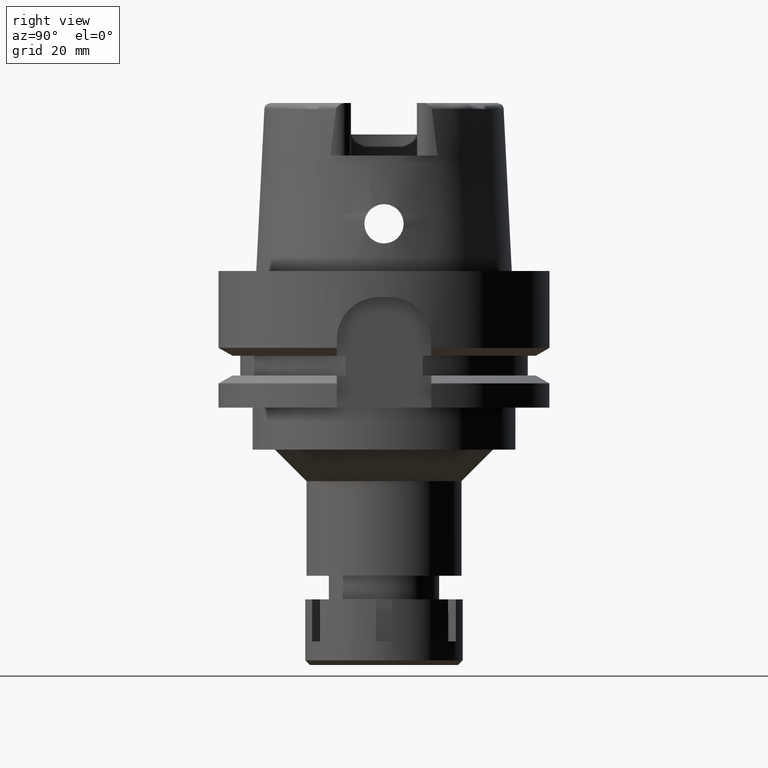
[diagram: clean part render]
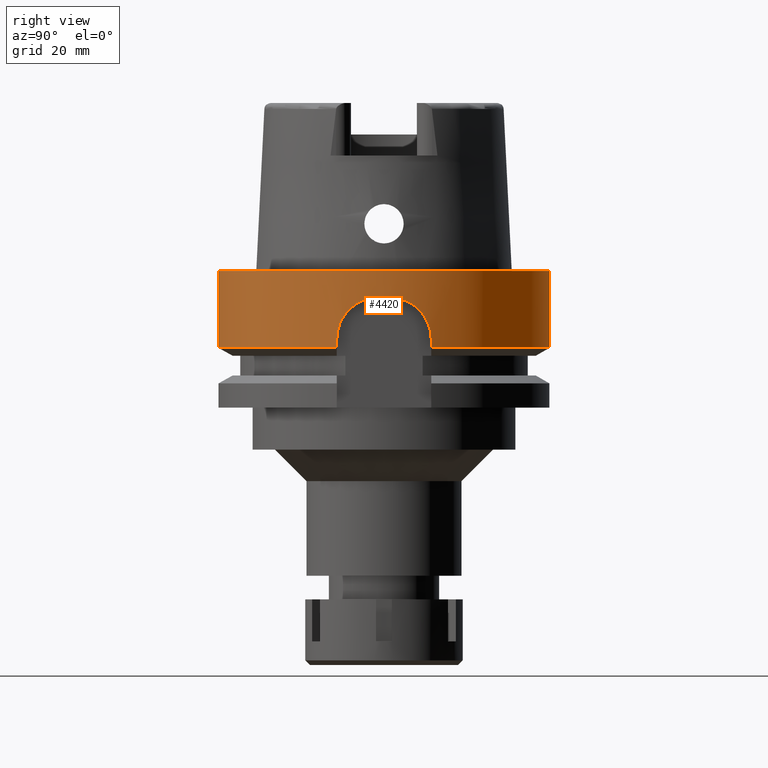
[diagram: same view with one face highlighted and labeled with its STEP entity id]
A machine part, right view. The second image highlights one B-rep face of the part: STEP entity #4420.
In plain terms, the highlighted cylindrical surface (partial cylindrical patch) has radius 31.5 mm, axis along (0, 0, -1).
Its self-contained STEP definition (entity closure, byte-faithful):
#4 = CARTESIAN_POINT ( 'NONE',  ( 30.78148365111714213, 6.689565182069702409, -7.376043464849003861 ) ) ;
#39 = CARTESIAN_POINT ( 'NONE',  ( 0.0000000000000000000, 1.677766114831999956E-14, 0.0000000000000000000 ) ) ;
#107 = CARTESIAN_POINT ( 'NONE',  ( 31.02797319483606486, -5.432761375399912218, -6.340373303321751308 ) ) ;
#139 = CARTESIAN_POINT ( 'NONE',  ( 0.0000000000000000000, 31.50000000000000000, -14.62250092523999889 ) ) ;
#166 = CARTESIAN_POINT ( 'NONE',  ( 30.97797763804207705, -5.712930770888673848, -6.530284249947230002 ) ) ;
#201 = CARTESIAN_POINT ( 'NONE',  ( 31.35607122379614609, -3.013391450067828270, -5.252881700905231099 ) ) ;
#241 = CIRCLE ( 'NONE', #2680, 31.49999999999999289 ) ;
#248 = VERTEX_POINT ( 'NONE', #5024 ) ;
#267 = CARTESIAN_POINT ( 'NONE',  ( 30.56029981751154168, -7.636631017110197206, -8.532876181258970405 ) ) ;
#360 = VECTOR ( 'NONE', #1124, 1000.000000000000000 ) ;
#369 = CARTESIAN_POINT ( 'NONE',  ( 30.69009880873393570, 7.098462872688864778, -7.820209739064075016 ) ) ;
#381 = CARTESIAN_POINT ( 'NONE',  ( 30.18691774079000112, 8.999999850595001405, -14.62250213027999912 ) ) ;
#397 = CARTESIAN_POINT ( 'NONE',  ( 30.54275554774404711, 7.706532036947776554, -8.638465214712349294 ) ) ;
#421 = CARTESIAN_POINT ( 'NONE',  ( 30.18691769625000632, 9.000000000000005329, -12.51035565466805899 ) ) ;
#456 = CARTESIAN_POINT ( 'NONE',  ( 31.01871288069463972, 5.485382523906350727, -6.375698367125474775 ) ) ;
#457 = CARTESIAN_POINT ( 'NONE',  ( 30.36389478902243155, -8.383544405778820874, -9.920470985410979381 ) ) ;
#476 = EDGE_CURVE ( 'NONE', #2558, #4615, #4098, .T. ) ;
#493 = CARTESIAN_POINT ( 'NONE',  ( 30.45943063634544146, 8.030118902081049725, -9.179699982118700419 ) ) ;
#495 = CARTESIAN_POINT ( 'NONE',  ( 30.37197365465753407, -8.354244172098301391, -9.850920936031977604 ) ) ;
#518 = CARTESIAN_POINT ( 'NONE',  ( 0.0000000000000000000, -31.50000000000000000, -14.62250092523999889 ) ) ;
#558 = CARTESIAN_POINT ( 'NONE',  ( 31.23410026198730804, 4.084248348500525871, -5.618435907310666444 ) ) ;
#593 = EDGE_CURVE ( 'NONE', #1068, #5653, #4219, .T. ) ;
#601 = CARTESIAN_POINT ( 'NONE',  ( 31.10876522246203990, -4.950170732599644019, -6.041869938743665180 ) ) ;
#624 = DIRECTION ( 'NONE',  ( 0.0000000000000000000, 0.0000000000000000000, -1.000000000000000000 ) ) ;
#629 = CARTESIAN_POINT ( 'NONE',  ( 31.24422722520275642, -4.006013624006941498, -5.586231993767872162 ) ) ;
#656 = CARTESIAN_POINT ( 'NONE',  ( 30.48049622959782567, -7.950573963582290737, -9.030179548391684463 ) ) ;
#689 = CARTESIAN_POINT ( 'NONE',  ( 30.73952989999871832, -6.883893007552462251, -7.569693794617783134 ) ) ;
#693 = EDGE_CURVE ( 'NONE', #1875, #1114, #6163, .T. ) ;
#719 = CARTESIAN_POINT ( 'NONE',  ( 30.84611475582509499, -6.384575698048524650, -7.082712731772429215 ) ) ;
#848 = CARTESIAN_POINT ( 'NONE',  ( 31.15711892493880342, 4.635972611428175405, -5.872780186188692575 ) ) ;
#884 = CARTESIAN_POINT ( 'NONE',  ( 30.54706518659995496, 7.689411622314710648, -8.612299891041281796 ) ) ;
#912 = CARTESIAN_POINT ( 'NONE',  ( 30.55015886526293656, 7.677101824582705625, -8.593603367411043692 ) ) ;
#934 = CARTESIAN_POINT ( 'NONE',  ( 0.0000000000000000000, 31.50000000000000000, 0.0000000000000000000 ) ) ;
#937 = CARTESIAN_POINT ( 'NONE',  ( 30.41091273291793229, 8.212615169025429651, -9.529086800332125406 ) ) ;
#940 = CARTESIAN_POINT ( 'NONE',  ( 0.0000000000000000000, 1.677766114831999956E-14, 37.00000000000000000 ) ) ;
#967 = CARTESIAN_POINT ( 'NONE',  ( 30.95356906829436383, 5.840595235416141229, -6.629295251251218879 ) ) ;
#1001 = DIRECTION ( 'NONE',  ( 0.0000000000000000000, 1.000000000000000000, 0.0000000000000000000 ) ) ;
#1068 = VERTEX_POINT ( 'NONE', #3517 ) ;
#1099 = CARTESIAN_POINT ( 'NONE',  ( 31.21214479923898466, -4.254475963520110149, -5.688146057964782010 ) ) ;
#1114 = VERTEX_POINT ( 'NONE', #3157 ) ;
#1124 = DIRECTION ( 'NONE',  ( 0.0000000000000000000, 2.721175632404000057E-14, -1.000000000000000000 ) ) ;
#1130 = ORIENTED_EDGE ( 'NONE', *, *, #5355, .F. ) ;
#1157 = CARTESIAN_POINT ( 'NONE',  ( 30.56951331995519539, -7.599724330830931684, -8.478411143897993441 ) ) ;
#1171 = EDGE_CURVE ( 'NONE', #6007, #1068, #4022, .T. ) ;
#1194 = CARTESIAN_POINT ( 'NONE',  ( 30.82571750781042397, -6.482449379905065534, -7.173788983184327783 ) ) ;
#1346 = CARTESIAN_POINT ( 'NONE',  ( 30.47652879783047908, 7.965014098454545888, -9.062047291202869559 ) ) ;
#1386 = CARTESIAN_POINT ( 'NONE',  ( 30.77165329688422801, 6.734679991239166164, -7.421994007308180485 ) ) ;
#1439 = CARTESIAN_POINT ( 'NONE',  ( 30.18691748915999895, -9.000000694596000272, -14.62249532278000075 ) ) ;
#1442 = CARTESIAN_POINT ( 'NONE',  ( 31.02017662484921345, 5.477102771240001999, -6.370101678855877303 ) ) ;
#1557 = AXIS2_PLACEMENT_3D ( 'NONE', #6012, #3624, #5549 ) ;
#1578 = CARTESIAN_POINT ( 'NONE',  ( 30.85909889956229435, -6.321181197444475153, -7.025751904065468345 ) ) ;
#1596 = ORIENTED_EDGE ( 'NONE', *, *, #1171, .F. ) ;
#1603 = CARTESIAN_POINT ( 'NONE',  ( 31.30247226131211491, 3.560025222427956493, -5.400071227477400093 ) ) ;
#1635 = CARTESIAN_POINT ( 'NONE',  ( 30.79724516347448926, -6.616615303664377556, -7.303178388600450432 ) ) ;
#1666 = CARTESIAN_POINT ( 'NONE',  ( 30.55815846529444002, -7.645193838811739973, -8.545630431340553557 ) ) ;
#1668 = VERTEX_POINT ( 'NONE', #139 ) ;
#1684 = CIRCLE ( 'NONE', #5227, 31.50000000000000000 ) ;
#1702 = CARTESIAN_POINT ( 'NONE',  ( 30.91849342379541810, -6.023486825926025467, -6.772495307575818302 ) ) ;
#1703 = CARTESIAN_POINT ( 'NONE',  ( 30.41590892496466125, -8.193239963576367302, -9.496691261237351966 ) ) ;
#1787 = CARTESIAN_POINT ( 'NONE',  ( 31.48412298285999711, -1.000000000000000000, -5.000000000000000000 ) ) ;
#1825 = CARTESIAN_POINT ( 'NONE',  ( 30.34509688291278806, 8.451419039640329700, -10.08823754938543260 ) ) ;
#1856 = CARTESIAN_POINT ( 'NONE',  ( 30.61169255399651945, 7.430572475122223963, -8.233870605579486579 ) ) ;
#1875 = VERTEX_POINT ( 'NONE', #4453 ) ;
#1890 = CARTESIAN_POINT ( 'NONE',  ( 30.35029740851320312, 8.432673448983045716, -10.04100477059268748 ) ) ;
#1920 = CARTESIAN_POINT ( 'NONE',  ( 30.97075232428232638, 5.748917598735032719, -6.561274915434163191 ) ) ;
#1948 = CARTESIAN_POINT ( 'NONE',  ( 31.02041403896003757, 5.475758734176313425, -6.369193933268698871 ) ) ;
#2011 = VECTOR ( 'NONE', #3181, 1000.000000000000000 ) ;
#2025 = EDGE_CURVE ( 'NONE', #1114, #248, #5651, .T. ) ;
#2048 = CARTESIAN_POINT ( 'NONE',  ( 30.79145347118613074, -6.643527767629334058, -7.329841252905257676 ) ) ;
#2072 = CARTESIAN_POINT ( 'NONE',  ( 31.22893191012109781, 4.123620075163048959, -5.634989586511971460 ) ) ;
#2173 = CARTESIAN_POINT ( 'NONE',  ( 31.26824356153269591, -3.814558525683269252, -5.510911337014207767 ) ) ;
#2204 = CARTESIAN_POINT ( 'NONE',  ( 30.55901330870536370, -7.641775936166810723, -8.540535702201847101 ) ) ;
#2299 = CARTESIAN_POINT ( 'NONE',  ( 30.53421219216972204, 7.740374578692214236, -8.690758859998446439 ) ) ;
#2356 = CARTESIAN_POINT ( 'NONE',  ( 30.77934224668183916, 6.699411514687004576, -7.386023333928227963 ) ) ;
#2393 = CARTESIAN_POINT ( 'NONE',  ( 30.24372130387500235, 8.809644321440931236, -11.24610680630427950 ) ) ;
#2406 = ORIENTED_EDGE ( 'NONE', *, *, #2025, .F. ) ;
#2415 = VECTOR ( 'NONE', #5729, 1000.000000000000114 ) ;
#2423 = CARTESIAN_POINT ( 'NONE',  ( 30.26147243125781472, 8.748295279893280707, -10.99148938357330074 ) ) ;
#2424 = CARTESIAN_POINT ( 'NONE',  ( 30.24485344821111354, -8.814384607751890144, -10.96434848890502067 ) ) ;
#2485 = CARTESIAN_POINT ( 'NONE',  ( 31.20965324672399177, 4.267577691866892842, -5.697308202746828698 ) ) ;
#2529 = CARTESIAN_POINT ( 'NONE',  ( 30.81528862570089800, -6.532080774231028286, -7.220736073166444058 ) ) ;
#2558 = VERTEX_POINT ( 'NONE', #3100 ) ;
#2588 = CARTESIAN_POINT ( 'NONE',  ( 31.46862929035463452, -1.487805320265247477, -4.999999999999999112 ) ) ;
#2628 = CARTESIAN_POINT ( 'NONE',  ( 31.29498280911034058, -3.590644704226123807, -5.428944358107306911 ) ) ;
#2680 = AXIS2_PLACEMENT_3D ( 'NONE', #2778, #4799, #3285 ) ;
#2772 = CARTESIAN_POINT ( 'NONE',  ( 30.29342446054688409, 8.635894868964701487, -10.61030164868087766 ) ) ;
#2778 = CARTESIAN_POINT ( 'NONE',  ( 0.0000000000000000000, 1.677766114831999956E-14, -5.000000000000000000 ) ) ;
#2783 = AXIS2_PLACEMENT_3D ( 'NONE', #940, #4358, #2877 ) ;
#2809 = CARTESIAN_POINT ( 'NONE',  ( 30.35576970332012081, 8.412926845556853550, -9.991887989071663867 ) ) ;
#2871 = CARTESIAN_POINT ( 'NONE',  ( 31.01660052379812882, 5.497299383744097767, -6.383776048889555632 ) ) ;
#2877 = DIRECTION ( 'NONE',  ( 0.0000000000000000000, -1.000000000000000000, 0.0000000000000000000 ) ) ;
#2906 = CARTESIAN_POINT ( 'NONE',  ( 30.50356433057181960, 7.860471261621429839, -8.884339992107612716 ) ) ;
#3008 = ORIENTED_EDGE ( 'NONE', *, *, #3254, .T. ) ;
#3034 = CARTESIAN_POINT ( 'NONE',  ( 31.00780943517899146, -5.547927636275338692, -6.417052218067710534 ) ) ;
#3059 = CARTESIAN_POINT ( 'NONE',  ( 31.44054950469833543, -1.991650298182549239, -5.044728215212137101 ) ) ;
#3100 = CARTESIAN_POINT ( 'NONE',  ( 0.0000000000000000000, -31.50000000000000000, 0.0000000000000000000 ) ) ;
#3157 = CARTESIAN_POINT ( 'NONE',  ( 30.18691769625000276, 9.000000000000000000, -13.00000000000000000 ) ) ;
#3158 = CARTESIAN_POINT ( 'NONE',  ( 30.51702138122520580, -7.809602996195259550, -8.791304496749226871 ) ) ;
#3181 = DIRECTION ( 'NONE',  ( 0.0000000000000000000, -2.672583210395999918E-14, -1.000000000000000000 ) ) ;
#3247 = CARTESIAN_POINT ( 'NONE',  ( 31.01215627929166985, 5.522260262830350541, -6.400779947638830514 ) ) ;
#3254 = EDGE_CURVE ( 'NONE', #5393, #2558, #4193, .T. ) ;
#3285 = DIRECTION ( 'NONE',  ( 0.9994959677099152229, -0.03174603174603050915, 0.0000000000000000000 ) ) ;
#3313 = CARTESIAN_POINT ( 'NONE',  ( 30.39415706032522024, -8.273302614902114271, -9.667877944127983625 ) ) ;
#3316 = CYLINDRICAL_SURFACE ( 'NONE', #2783, 31.50000000000000000 ) ;
#3342 = CARTESIAN_POINT ( 'NONE',  ( 30.20111859815625266, 8.954925112628275841, -12.00707024331874884 ) ) ;
#3372 = CARTESIAN_POINT ( 'NONE',  ( 31.02046532281576674, 5.475467727753368763, -6.368997844157138211 ) ) ;
#3374 = CARTESIAN_POINT ( 'NONE',  ( 30.18691769625000632, -8.999999999999998224, -12.01186823875335286 ) ) ;
#3516 = CARTESIAN_POINT ( 'NONE',  ( 30.80271864489423095, -6.591096321447737161, -7.278056981296209038 ) ) ;
#3517 = CARTESIAN_POINT ( 'NONE',  ( 30.18691769625000276, -9.000000000000000000, -13.00000000000000000 ) ) ;
#3538 = CARTESIAN_POINT ( 'NONE',  ( 31.17404391879315995, 4.520808510361700172, -5.815329843591667824 ) ) ;
#3545 = CARTESIAN_POINT ( 'NONE',  ( 30.89620926595629768, -6.137412221857539762, -6.865390456274767850 ) ) ;
#3571 = CARTESIAN_POINT ( 'NONE',  ( 30.69497382150876774, -7.078897051580698374, -7.792716779791430959 ) ) ;
#3581 = EDGE_CURVE ( 'NONE', #1875, #1668, #5701, .T. ) ;
#3607 = CARTESIAN_POINT ( 'NONE',  ( 31.03015365800096959, -5.420292428417756270, -6.332087915484615692 ) ) ;
#3624 = DIRECTION ( 'NONE',  ( 0.0000000000000000000, 0.0000000000000000000, 1.000000000000000000 ) ) ;
#3643 = CARTESIAN_POINT ( 'NONE',  ( 31.48412298285999711, -1.000000000000000000, -5.000000000000000000 ) ) ;
#3663 = CARTESIAN_POINT ( 'NONE',  ( 0.0000000000000000000, -31.50000000000000000, 0.0000000000000000000 ) ) ;
#3763 = CARTESIAN_POINT ( 'NONE',  ( 30.38226957200307510, 8.317185548175956455, -9.757207785259799593 ) ) ;
#3794 = CARTESIAN_POINT ( 'NONE',  ( 30.35379216171670436, 8.420066611669067669, -10.00953200230019746 ) ) ;
#3830 = CARTESIAN_POINT ( 'NONE',  ( 30.55097264116384892, 7.673860968864925525, -8.588697550987966167 ) ) ;
#3831 = CARTESIAN_POINT ( 'NONE',  ( 30.38363375294806445, -8.311826173558849007, -9.752881621625197894 ) ) ;
#3861 = CARTESIAN_POINT ( 'NONE',  ( 31.01974161780370665, 5.479565458213795814, -6.371764924540990194 ) ) ;
#3880 = ORIENTED_EDGE ( 'NONE', *, *, #693, .F. ) ;
#3889 = CARTESIAN_POINT ( 'NONE',  ( 31.06401884169623173, 5.228604343943706212, -6.202469948205326489 ) ) ;
#3954 = CARTESIAN_POINT ( 'NONE',  ( 31.22260868516546850, 4.171333773998290084, -5.655329260578008110 ) ) ;
#3979 = CARTESIAN_POINT ( 'NONE',  ( 31.46845282395210930, 1.493361210154531049, -4.999999999999996447 ) ) ;
#3989 = CARTESIAN_POINT ( 'NONE',  ( 31.24218207677467518, -4.021946038064563744, -5.592711960442447783 ) ) ;
#3992 = AXIS2_PLACEMENT_3D ( 'NONE', #39, #624, #1001 ) ;
#4022 = B_SPLINE_CURVE_WITH_KNOTS ( 'NONE', 3,
 ( #3643, #2588, #3059, #4963, #201, #4992, #2628, #2173, #5448, #4578, #629, #3989, #4023, #1099, #4934, #4050, #601, #5974, #5028, #4076, #4115, #5568, #3607, #4457, #5911, #107, #3034, #166, #1702, #3545, #1578, #719, #1194, #2529, #3516, #1635, #5054, #2048, #689, #3571, #4484, #5501, #5943, #5472, #1157, #4548, #267, #2204, #1666, #5534, #3158, #656, #6030, #1703, #3313, #3831, #495, #5779, #457, #4832, #2424, #3374, #5308 ),
 .UNSPECIFIED., .F., .F.,
 ( 4, 2, 2, 1, 1, 1, 1, 2, 2, 2, 2, 1, 1, 1, 1, 1, 2, 2, 2, 2, 2, 1, 1, 2, 2, 2, 2, 1, 1, 1, 1, 2, 2, 2, 2, 1, 1, 2, 2, 4 ),
 ( 0.0000000000000000000, 0.1250000000000527356, 0.1875000000000790479, 0.2187500000000921208, 0.2343750000000986711, 0.2421875000001020850, 0.2460937500001036671, 0.2480468750001042499, 0.2500000000001048606, 0.3125000000001188494, 0.3437500000001258438, 0.3593750000001292855, 0.3671875000001311173, 0.3710937500001318945, 0.3730468750001324496, 0.3740234375001327272, 0.3745117187501326717, 0.3750000000001326717, 0.4375000000001216249, 0.4687500000001161293, 0.4843750000001135203, 0.4921875000001122991, 0.4960937500001115774, 0.4980468750001112443, 0.5000000000001109113, 0.5625000000001030287, 0.5937500000000991429, 0.6093750000000974776, 0.6171875000000964784, 0.6210937500000958122, 0.6230468750000955902, 0.6240234375000953682, 0.6250000000000952571, 0.6875000000000801581, 0.7187500000000724976, 0.7343750000000686118, 0.7421875000000662803, 0.7460937500000649480, 0.7500000000000636158, 1.000000000000000000 ),
 .UNSPECIFIED. ) ;
#4023 = CARTESIAN_POINT ( 'NONE',  ( 31.24100217597846907, -4.031104593208464593, -5.596456356445931313 ) ) ;
#4042 = CARTESIAN_POINT ( 'NONE',  ( 31.48412298285999711, 1.000000000000000000, -5.000000000000000000 ) ) ;
#4050 = CARTESIAN_POINT ( 'NONE',  ( 31.12738306938515009, -4.831541781429274707, -5.975991592040029943 ) ) ;
#4076 = CARTESIAN_POINT ( 'NONE',  ( 31.04633395360524517, -5.326931901370442368, -6.270961272751457649 ) ) ;
#4098 = LINE ( 'NONE', #3663, #2011 ) ;
#4115 = CARTESIAN_POINT ( 'NONE',  ( 31.03712602127087195, -5.380243276983098788, -6.305670222402689262 ) ) ;
#4139 = LINE ( 'NONE', #4169, #360 ) ;
#4145 = ORIENTED_EDGE ( 'NONE', *, *, #6069, .T. ) ;
#4169 = CARTESIAN_POINT ( 'NONE',  ( 0.0000000000000000000, 31.50000000000000000, 0.0000000000000000000 ) ) ;
#4193 = CIRCLE ( 'NONE', #3992, 31.50000000000000000 ) ;
#4219 = LINE ( 'NONE', #4776, #2415 ) ;
#4268 = CARTESIAN_POINT ( 'NONE',  ( 30.57875959978870029, 7.563159460685689339, -8.421357601556197281 ) ) ;
#4294 = CARTESIAN_POINT ( 'NONE',  ( 30.78088847307225606, 6.692302868687052708, -7.378815634398541157 ) ) ;
#4296 = EDGE_CURVE ( 'NONE', #6007, #248, #241, .T. ) ;
#4330 = CARTESIAN_POINT ( 'NONE',  ( 30.99909742240370747, 5.594721326418952145, -6.450944590408928647 ) ) ;
#4355 = CARTESIAN_POINT ( 'NONE',  ( 30.33325355261207434, 8.494008317819075060, -10.19860414708367813 ) ) ;
#4358 = DIRECTION ( 'NONE',  ( 0.0000000000000000000, 0.0000000000000000000, -1.000000000000000000 ) ) ;
#4419 = CARTESIAN_POINT ( 'NONE',  ( 31.43987017416817409, 2.003457428440313493, -5.045754775018925109 ) ) ;
#4420 = ADVANCED_FACE ( 'NONE', ( #6179 ), #3316, .T. ) ;
#4453 = CARTESIAN_POINT ( 'NONE',  ( 30.18691774079000112, 8.999999850595001405, -14.62250213027999912 ) ) ;
#4457 = CARTESIAN_POINT ( 'NONE',  ( 31.02915286224676805, -5.426018244564182247, -6.335889575377477101 ) ) ;
#4484 = CARTESIAN_POINT ( 'NONE',  ( 30.63683078049334441, -7.324907913156597061, -8.099720736030993962 ) ) ;
#4502 = ORIENTED_EDGE ( 'NONE', *, *, #476, .T. ) ;
#4548 = CARTESIAN_POINT ( 'NONE',  ( 30.56333137722122828, -7.624499281001679840, -8.514882342115900116 ) ) ;
#4578 = CARTESIAN_POINT ( 'NONE',  ( 31.24728572951490335, -3.982110028868854013, -5.576554931233825840 ) ) ;
#4615 = VERTEX_POINT ( 'NONE', #518 ) ;
#4641 = ORIENTED_EDGE ( 'NONE', *, *, #4296, .T. ) ;
#4765 = CARTESIAN_POINT ( 'NONE',  ( 30.66945221618942696, 7.187079263866858803, -7.926824158067412363 ) ) ;
#4776 = CARTESIAN_POINT ( 'NONE',  ( 30.18691769625000276, -9.000000000000000000, -13.00000000000000000 ) ) ;
#4799 = DIRECTION ( 'NONE',  ( 0.0000000000000000000, 0.0000000000000000000, 1.000000000000000000 ) ) ;
#4831 = CARTESIAN_POINT ( 'NONE',  ( 30.99251293236124738, 5.630846267959039864, -6.476380405704358800 ) ) ;
#4832 = CARTESIAN_POINT ( 'NONE',  ( 30.36253544438212160, -8.388468450427053469, -9.932292550282539878 ) ) ;
#4853 = DIRECTION ( 'NONE',  ( 0.0000000000000000000, -1.000000000000000000, 0.0000000000000000000 ) ) ;
#4934 = CARTESIAN_POINT ( 'NONE',  ( 31.18046077523389314, -4.480996697699862530, -5.792206430375179238 ) ) ;
#4963 = CARTESIAN_POINT ( 'NONE',  ( 31.37955068648750512, -2.756819186349608763, -5.190965730808595247 ) ) ;
#4984 = CARTESIAN_POINT ( 'NONE',  ( 31.23338596598210515, 4.089706828943030281, -5.620720514371156717 ) ) ;
#4992 = CARTESIAN_POINT ( 'NONE',  ( 31.31613224482754276, -3.398232950592465773, -5.366758520619411499 ) ) ;
#5024 = CARTESIAN_POINT ( 'NONE',  ( 31.48412298285999711, 1.000000000000000000, -5.000000000000000000 ) ) ;
#5028 = CARTESIAN_POINT ( 'NONE',  ( 31.06444621132956385, -5.220631660408384001, -6.203290661901943004 ) ) ;
#5054 = CARTESIAN_POINT ( 'NONE',  ( 30.79357698768613361, -6.633676991750558471, -7.320050396870914078 ) ) ;
#5179 = CARTESIAN_POINT ( 'NONE',  ( 31.10351890538546016, 4.987046115461471807, -6.059272394413904195 ) ) ;
#5215 = CARTESIAN_POINT ( 'NONE',  ( 30.51742916957095275, 7.806478699349650441, -8.795180355633830160 ) ) ;
#5227 = AXIS2_PLACEMENT_3D ( 'NONE', #5739, #6229, #4853 ) ;
#5251 = CARTESIAN_POINT ( 'NONE',  ( 30.77702698924018776, 6.710047843562674252, -7.396828395759234454 ) ) ;
#5275 = CARTESIAN_POINT ( 'NONE',  ( 30.89399074852435589, 6.150291294866339520, -6.872727809744458405 ) ) ;
#5305 = CARTESIAN_POINT ( 'NONE',  ( 30.54892030919577550, 7.682031465898693234, -8.601082457208736542 ) ) ;
#5308 = CARTESIAN_POINT ( 'NONE',  ( 30.18691769625000276, -9.000000000000000000, -13.00000000000000000 ) ) ;
#5355 = EDGE_CURVE ( 'NONE', #5393, #1668, #4139, .T. ) ;
#5393 = VERTEX_POINT ( 'NONE', #934 ) ;
#5448 = CARTESIAN_POINT ( 'NONE',  ( 31.25435771126697304, -3.926301317947178404, -5.554274958261831152 ) ) ;
#5465 = CARTESIAN_POINT ( 'NONE',  ( 31.23160875775955603, 4.103260192286806607, -5.626409952078437193 ) ) ;
#5472 = CARTESIAN_POINT ( 'NONE',  ( 30.58235249868116412, -7.548097954094777684, -8.403559061288646603 ) ) ;
#5501 = CARTESIAN_POINT ( 'NONE',  ( 30.61889827960812482, -7.399162533186591340, -8.197521134836996737 ) ) ;
#5534 = CARTESIAN_POINT ( 'NONE',  ( 30.55793734189127520, -7.646077928401243895, -8.546948391132199063 ) ) ;
#5549 = DIRECTION ( 'NONE',  ( 0.9583148474999051425, 0.2857142857143015191, 0.0000000000000000000 ) ) ;
#5568 = CARTESIAN_POINT ( 'NONE',  ( 31.03248410423561054, -5.406936651751833800, -6.323245115047765985 ) ) ;
#5581 = ORIENTED_EDGE ( 'NONE', *, *, #3581, .T. ) ;
#5651 = B_SPLINE_CURVE_WITH_KNOTS ( 'NONE', 3,
 ( #5804, #421, #3342, #2393, #2423, #2772, #6153, #4355, #1825, #1890, #3794, #2809, #3763, #937, #493, #1346, #2906, #5215, #2299, #397, #884, #5305, #912, #3830, #4268, #1856, #4765, #369, #5747, #5778, #5716, #1386, #5251, #2356, #4294, #4, #6206, #5275, #967, #1920, #4831, #4330, #6239, #3247, #2871, #456, #3861, #1442, #3372, #1948, #3889, #5179, #848, #3538, #5934, #2485, #3954, #2072, #5465, #4984, #558, #1603, #5868, #4419, #3979, #4042 ),
 .UNSPECIFIED., .F., .F.,
 ( 4, 2, 2, 1, 1, 1, 2, 2, 2, 2, 1, 1, 1, 1, 2, 2, 2, 2, 1, 1, 1, 1, 2, 2, 2, 2, 2, 1, 1, 1, 1, 2, 2, 2, 2, 1, 1, 1, 2, 2, 2, 4 ),
 ( 0.0000000000000000000, 0.1249999999999893141, 0.1874999999999840128, 0.2187499999999814315, 0.2343749999999802103, 0.2421874999999795719, 0.2460937499999792388, 0.2499999999999789058, 0.3124999999999752975, 0.3437499999999734657, 0.3593749999999726885, 0.3671874999999724665, 0.3710937499999723554, 0.3730468749999721334, 0.3740234374999719669, 0.3749999999999718003, 0.4374999999999705791, 0.4687499999999699130, 0.4843749999999696354, 0.4921874999999695244, 0.4960937499999693578, 0.4980468749999693023, 0.4990234374999693023, 0.4999999999999692468, 0.5624999999999693578, 0.5937499999999694689, 0.6093749999999695799, 0.6171874999999693578, 0.6210937499999690248, 0.6230468749999688027, 0.6240234374999688027, 0.6245117187499686917, 0.6249999999999686917, 0.6874999999999695799, 0.7187499999999701350, 0.7343749999999704681, 0.7421874999999708011, 0.7460937499999709122, 0.7480468749999710232, 0.7499999999999711342, 0.8749999999999855671, 1.000000000000000000 ),
 .UNSPECIFIED. ) ;
#5653 = VERTEX_POINT ( 'NONE', #1439 ) ;
#5701 = CIRCLE ( 'NONE', #1557, 31.49999999999999645 ) ;
#5716 = CARTESIAN_POINT ( 'NONE',  ( 30.76102021220390981, 6.783204705059552531, -7.472134190937731901 ) ) ;
#5729 = DIRECTION ( 'NONE',  ( -1.276362171673000039E-07, -4.281037327356000592E-07, -0.9999999999999001910 ) ) ;
#5739 = CARTESIAN_POINT ( 'NONE',  ( 0.0000000000000000000, 1.036372656197999898E-14, -14.62250092523999889 ) ) ;
#5747 = CARTESIAN_POINT ( 'NONE',  ( 30.72315875527098328, 6.953112166512550374, -7.655299384237407523 ) ) ;
#5778 = CARTESIAN_POINT ( 'NONE',  ( 30.74021124296957908, 6.877329747730089871, -7.571601295837036893 ) ) ;
#5779 = CARTESIAN_POINT ( 'NONE',  ( 30.36710870402933793, -8.371894073184538598, -9.892685288299546187 ) ) ;
#5804 = CARTESIAN_POINT ( 'NONE',  ( 30.18691769625000276, 9.000000000000000000, -13.00000000000000000 ) ) ;
#5837 = ORIENTED_EDGE ( 'NONE', *, *, #593, .F. ) ;
#5868 = CARTESIAN_POINT ( 'NONE',  ( 31.35687989284818045, 3.036791063199982155, -5.245747871348586777 ) ) ;
#5911 = CARTESIAN_POINT ( 'NONE',  ( 31.02848521328126097, -5.429835876191050126, -6.338426660105869637 ) ) ;
#5919 = EDGE_LOOP ( 'NONE', ( #5581, #1130, #3008, #4502, #4145, #5837, #1596, #4641, #2406, #3880 ) ) ;
#5934 = CARTESIAN_POINT ( 'NONE',  ( 31.19801889057956856, 4.351427971253136739, -5.735578136612861755 ) ) ;
#5943 = CARTESIAN_POINT ( 'NONE',  ( 30.59417229746017597, -7.500180910037670401, -8.336211922599728652 ) ) ;
#5974 = CARTESIAN_POINT ( 'NONE',  ( 31.07945053461711638, -5.130141137928079687, -6.148227246011031433 ) ) ;
#6007 = VERTEX_POINT ( 'NONE', #1787 ) ;
#6012 = CARTESIAN_POINT ( 'NONE',  ( 0.0000000000000000000, 1.036372656197999898E-14, -14.62250092523999889 ) ) ;
#6030 = CARTESIAN_POINT ( 'NONE',  ( 30.43135050123782648, -8.135843716330951381, -9.380991480196668064 ) ) ;
#6046 = VECTOR ( 'NONE', #6221, 999.9999999999998863 ) ;
#6069 = EDGE_CURVE ( 'NONE', #4615, #5653, #1684, .T. ) ;
#6153 = CARTESIAN_POINT ( 'NONE',  ( 30.31073180974510350, 8.574603681002939126, -10.41989627327755841 ) ) ;
#6163 = LINE ( 'NONE', #381, #6046 ) ;
#6179 = FACE_OUTER_BOUND ( 'NONE', #5919, .T. ) ;
#6206 = CARTESIAN_POINT ( 'NONE',  ( 30.84356713293623642, 6.403719581392160798, -7.087314773894433095 ) ) ;
#6221 = DIRECTION ( 'NONE',  ( -2.745354850660977416E-08, 9.208310177518920137E-08, 0.9999999999999954481 ) ) ;
#6229 = DIRECTION ( 'NONE',  ( 0.0000000000000000000, 0.0000000000000000000, 1.000000000000000000 ) ) ;
#6239 = CARTESIAN_POINT ( 'NONE',  ( 31.00797058849163435, 5.545574345898462099, -6.416828152611725677 ) ) ;